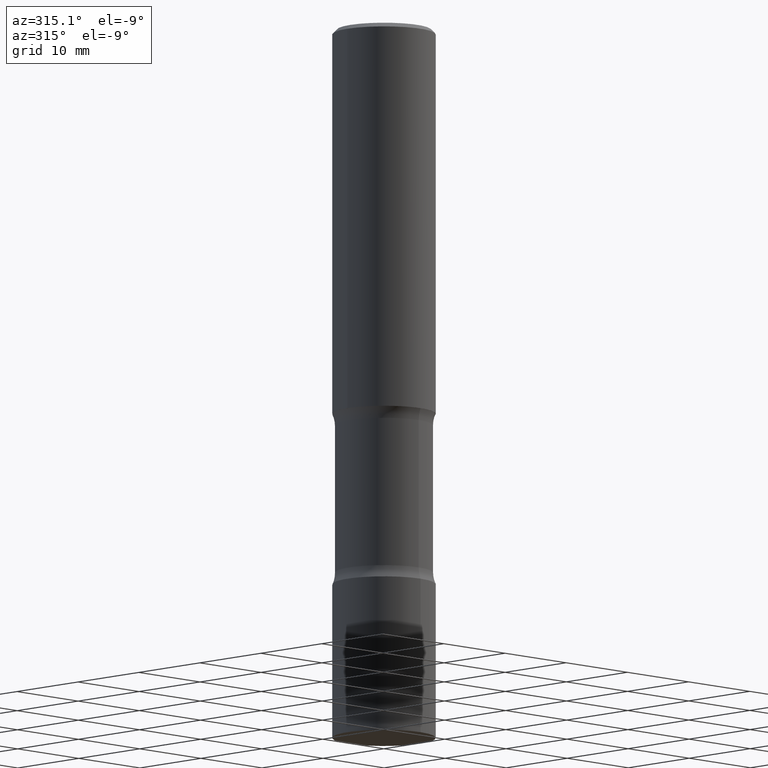
[diagram: clean part render]
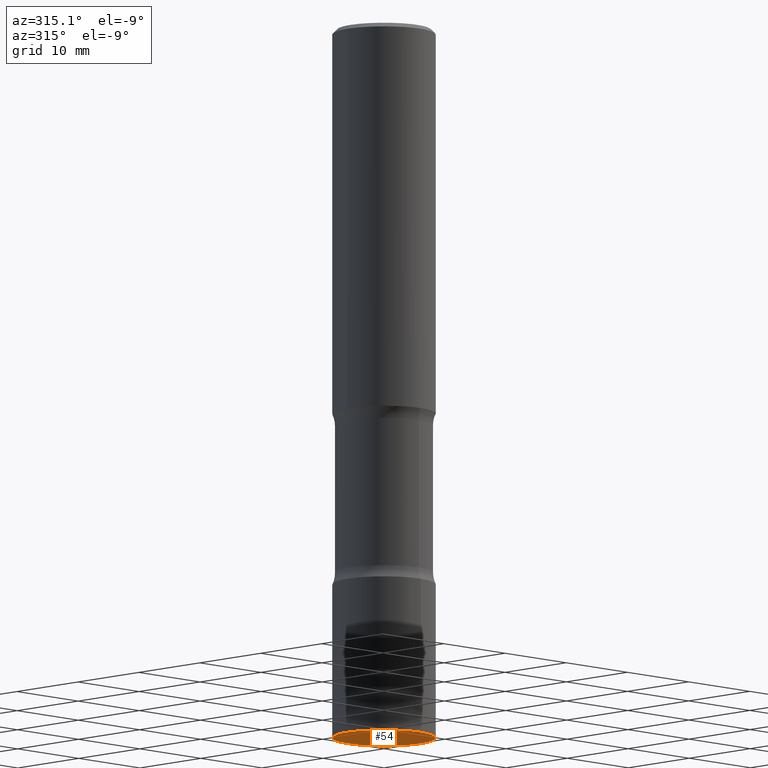
[diagram: same view with one face highlighted and labeled with its STEP entity id]
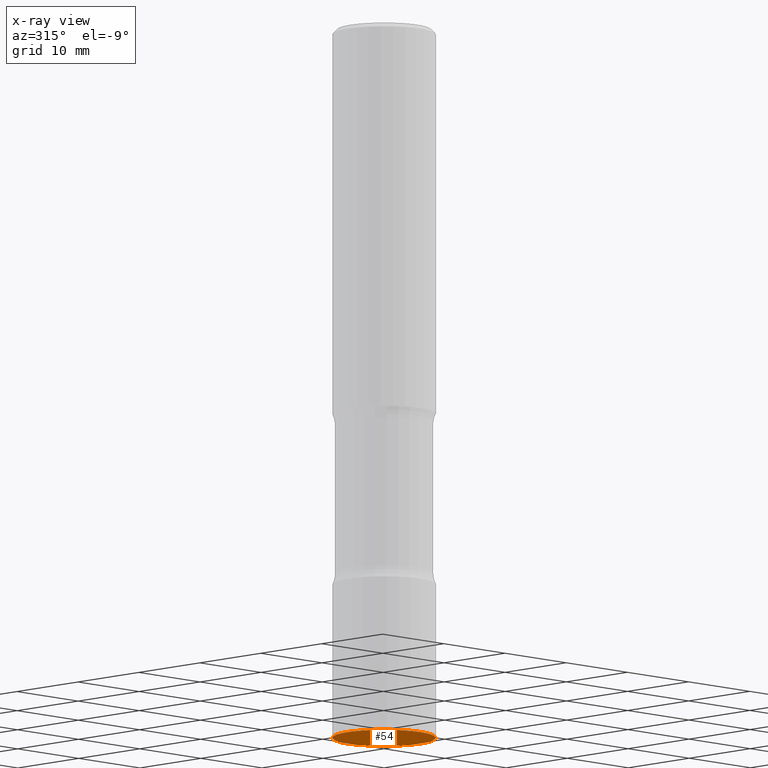
[diagram: x-ray of the same camera — body ghosted, the highlighted face saturated]
A machine part, auxiliary view. The second image highlights one B-rep face of the part: STEP entity #54.
The next image is the same camera in x-ray: the body ghosted, the highlighted face saturated — about 0% of this face is hidden behind the body in this view.
In plain terms, the highlighted planar face has unit normal (0, -0, -1).
Its self-contained STEP definition (entity closure, byte-faithful):
#1 = VERTEX_POINT ( 'NONE', #46 ) ;
#17 = AXIS2_PLACEMENT_3D ( 'NONE', #485, #44, #250 ) ;
#43 = ORIENTED_EDGE ( 'NONE', *, *, #61, .F. ) ;
#44 = DIRECTION ( 'NONE',  ( -2.443051735199450361E-29, 3.494942722065785173E-15, 1.000000000000000000 ) ) ;
#46 = CARTESIAN_POINT ( 'NONE',  ( 1.678301941865427392E-15, 0.2361999999999885858, -3.267700000000001381 ) ) ;
#54 = ADVANCED_FACE ( 'NONE', ( #130 ), #86, .T. ) ;
#55 = CIRCLE ( 'NONE', #348, 0.2361999999999999933 ) ;
#61 = EDGE_CURVE ( 'NONE', #1, #196, #55, .T. ) ;
#86 = PLANE ( 'NONE',  #221 ) ;
#130 = FACE_OUTER_BOUND ( 'NONE', #189, .T. ) ;
#172 = DIRECTION ( 'NONE',  ( 2.443051735199450081E-29, -3.494942722065785173E-15, -1.000000000000000000 ) ) ;
#189 = EDGE_LOOP ( 'NONE', ( #505, #43 ) ) ;
#196 = VERTEX_POINT ( 'NONE', #493 ) ;
#221 = AXIS2_PLACEMENT_3D ( 'NONE', #450, #172, #247 ) ;
#224 = CIRCLE ( 'NONE', #17, 0.2361999999999999933 ) ;
#246 = DIRECTION ( 'NONE',  ( -2.443051735199450361E-29, 3.494942722065785173E-15, 1.000000000000000000 ) ) ;
#247 = DIRECTION ( 'NONE',  ( 6.982962677686265922E-15, 1.000000000000000000, -3.494942722065785173E-15 ) ) ;
#250 = DIRECTION ( 'NONE',  ( -6.982962677686265922E-15, -1.000000000000000000, 4.626330217890369336E-15 ) ) ;
#348 = AXIS2_PLACEMENT_3D ( 'NONE', #447, #246, #404 ) ;
#404 = DIRECTION ( 'NONE',  ( -6.982962677686265922E-15, -1.000000000000000000, 4.626330217890369336E-15 ) ) ;
#447 = CARTESIAN_POINT ( 'NONE',  ( 7.983160155111243583E-29, -1.142042433289436647E-14, -3.267700000000000049 ) ) ;
#450 = CARTESIAN_POINT ( 'NONE',  ( 7.991058417971171713E-29, -1.140911357093774644E-14, -3.267700000000000049 ) ) ;
#485 = CARTESIAN_POINT ( 'NONE',  ( 7.983160155111243583E-29, -1.142042433289436647E-14, -3.267700000000000049 ) ) ;
#493 = CARTESIAN_POINT ( 'NONE',  ( -1.649375784469416061E-15, -0.2362000000000114008, -3.267699999999999161 ) ) ;
#502 = EDGE_CURVE ( 'NONE', #196, #1, #224, .T. ) ;
#505 = ORIENTED_EDGE ( 'NONE', *, *, #502, .F. ) ;